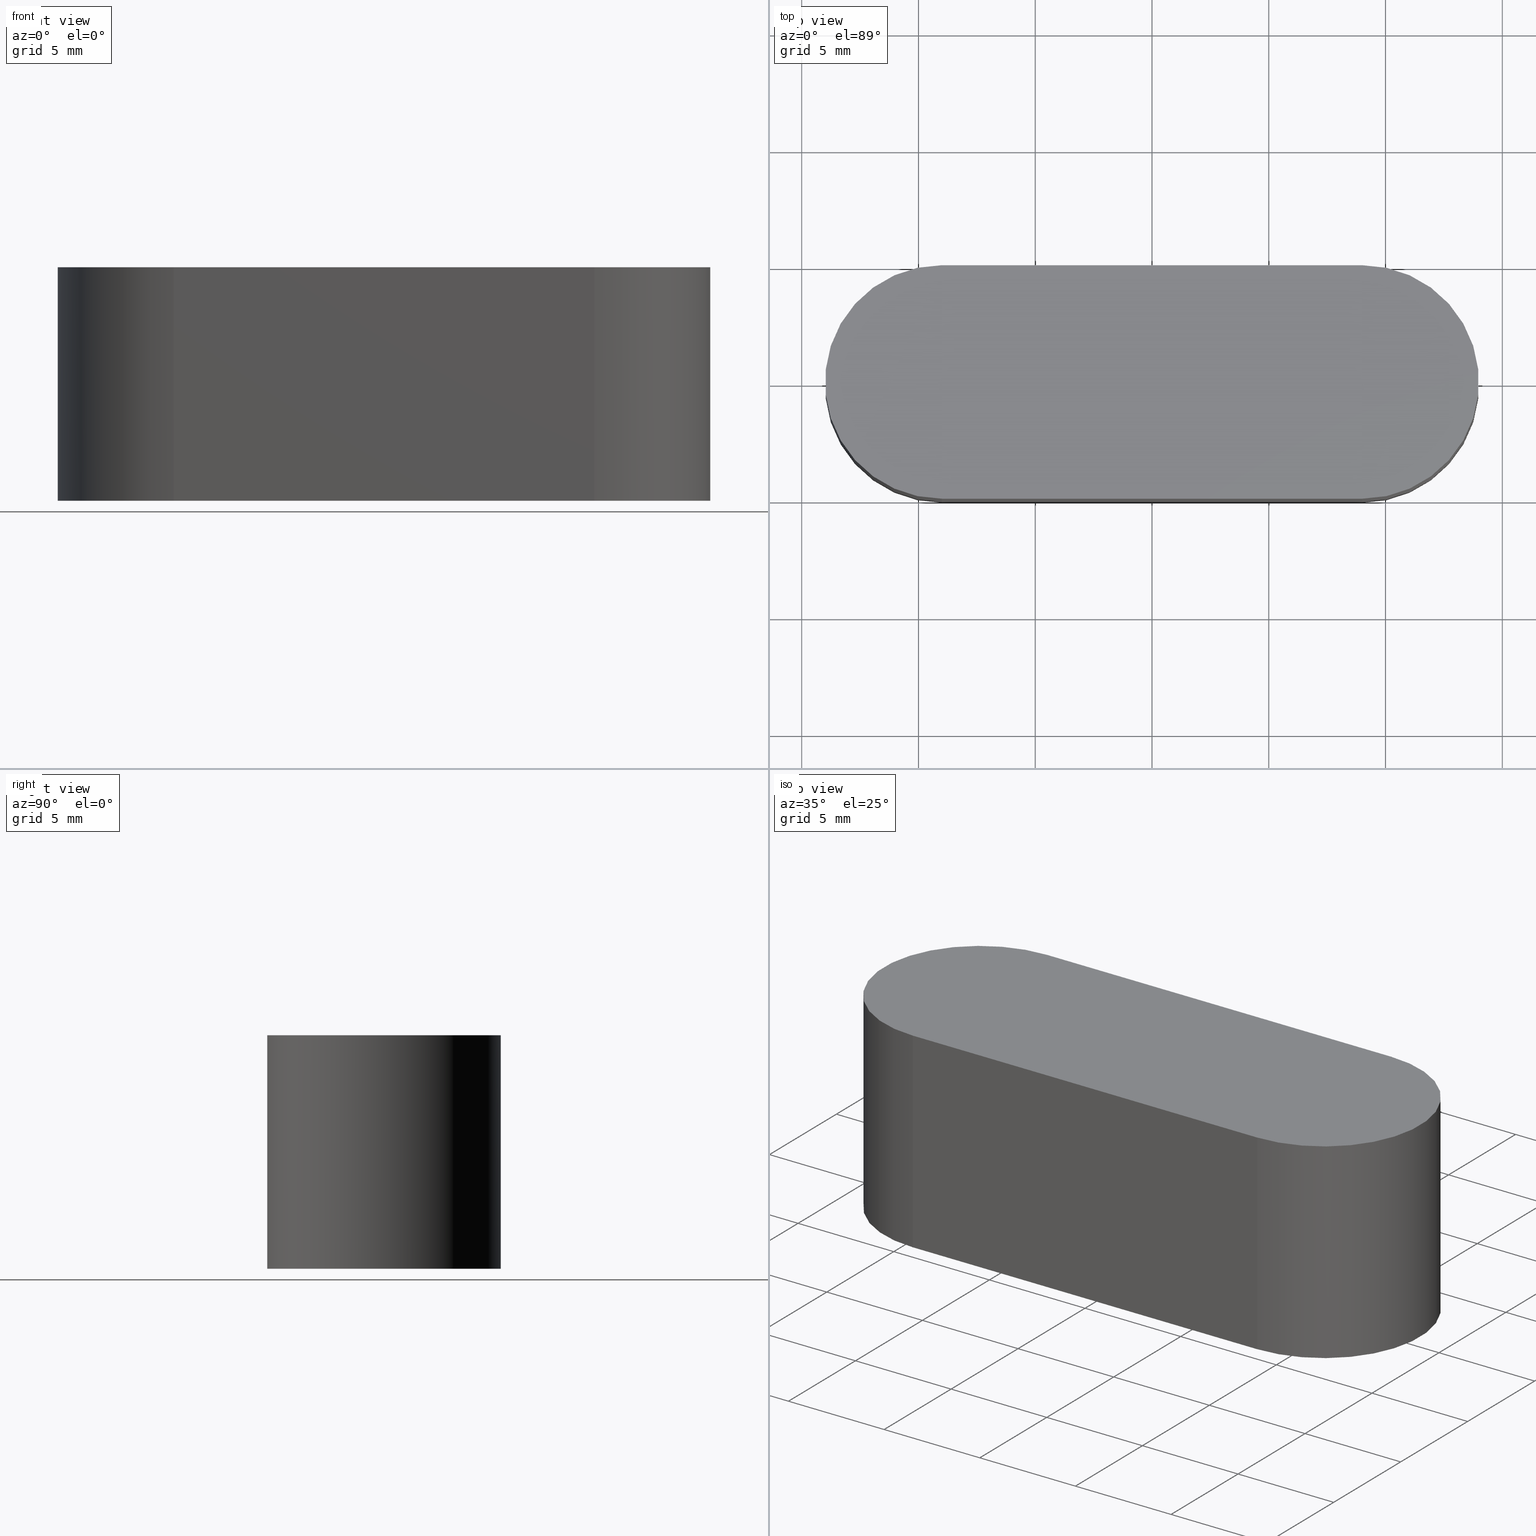
[diagram: canonical four-view strip — front | top / right | iso, engineering-drawing reading convention]
A machine part, canonical four-view strip (front | top / right | iso — engineering-drawing reading convention). The complete STEP part file that produces these views, byte-faithful:
ISO-10303-21;
HEADER;
/* Generated by software containing ST-Developer
 * from STEP Tools, Inc. (www.steptools.com) 
 */

FILE_DESCRIPTION(
/* description */ (''),
/* implementation_level */ '2;1');

FILE_NAME(
/* name */ 
'H:\\Eigene Dateien\\CAD Workspace Vault\\CAD\\E_3_Nocken\\E_3_01_Aufs
chwei\X\DFnocke\\01_Rund\\E_3_01_01_03_00_WKZ-0205.stp',
/* time_stamp */ '2024-05-16T11:03:45+02:00',
/* author */ ('dfischer'),
/* organization */ (''),
/* preprocessor_version */ 'ST-DEVELOPER v18.1',
/* originating_system */ 'Autodesk Inventor 2021',
/* authorisation */ '');

FILE_SCHEMA (('AUTOMOTIVE_DESIGN { 1 0 10303 214 3 1 1 }'));
ENDSEC;

DATA;
#10=MECHANICAL_DESIGN_GEOMETRIC_PRESENTATION_REPRESENTATION('',(#96,#97),
#194);
#11=SHAPE_REPRESENTATION_RELATIONSHIP('SRR','None',#201,#12);
#12=ADVANCED_BREP_SHAPE_REPRESENTATION('',(#13),#193);
#13=MANIFOLD_SOLID_BREP('Volumenk\X\F6rper1',#104);
#14=CYLINDRICAL_SURFACE('',#127,5.);
#15=CYLINDRICAL_SURFACE('',#130,5.);
#16=FACE_OUTER_BOUND('',#22,.T.);
#17=FACE_OUTER_BOUND('',#23,.T.);
#18=FACE_OUTER_BOUND('',#24,.T.);
#19=FACE_OUTER_BOUND('',#25,.T.);
#20=FACE_OUTER_BOUND('',#26,.T.);
#21=FACE_OUTER_BOUND('',#27,.T.);
#22=EDGE_LOOP('',(#68,#69,#70,#71));
#23=EDGE_LOOP('',(#72,#73,#74,#75));
#24=EDGE_LOOP('',(#76,#77,#78,#79));
#25=EDGE_LOOP('',(#80,#81,#82,#83));
#26=EDGE_LOOP('',(#84,#85,#86,#87));
#27=EDGE_LOOP('',(#88,#89,#90,#91));
#28=LINE('',#170,#36);
#29=LINE('',#173,#37);
#30=LINE('',#178,#38);
#31=LINE('',#179,#39);
#32=LINE('',#182,#40);
#33=LINE('',#183,#41);
#34=LINE('',#187,#42);
#35=LINE('',#189,#43);
#36=VECTOR('',#140,10.);
#37=VECTOR('',#143,10.);
#38=VECTOR('',#148,10.);
#39=VECTOR('',#149,10.);
#40=VECTOR('',#152,10.);
#41=VECTOR('',#153,10.);
#42=VECTOR('',#158,10.);
#43=VECTOR('',#161,10.);
#44=CIRCLE('',#125,5.);
#45=CIRCLE('',#126,5.);
#46=CIRCLE('',#128,5.);
#47=CIRCLE('',#131,5.);
#48=VERTEX_POINT('',#166);
#49=VERTEX_POINT('',#167);
#50=VERTEX_POINT('',#169);
#51=VERTEX_POINT('',#171);
#52=VERTEX_POINT('',#175);
#53=VERTEX_POINT('',#176);
#54=VERTEX_POINT('',#181);
#55=VERTEX_POINT('',#185);
#56=EDGE_CURVE('',#48,#49,#44,.T.);
#57=EDGE_CURVE('',#50,#48,#28,.T.);
#58=EDGE_CURVE('',#51,#50,#45,.T.);
#59=EDGE_CURVE('',#49,#51,#29,.T.);
#60=EDGE_CURVE('',#52,#53,#46,.T.);
#61=EDGE_CURVE('',#51,#53,#30,.T.);
#62=EDGE_CURVE('',#52,#50,#31,.T.);
#63=EDGE_CURVE('',#53,#54,#32,.T.);
#64=EDGE_CURVE('',#49,#54,#33,.T.);
#65=EDGE_CURVE('',#54,#55,#47,.T.);
#66=EDGE_CURVE('',#48,#55,#34,.T.);
#67=EDGE_CURVE('',#55,#52,#35,.T.);
#68=ORIENTED_EDGE('',*,*,#56,.F.);
#69=ORIENTED_EDGE('',*,*,#57,.F.);
#70=ORIENTED_EDGE('',*,*,#58,.F.);
#71=ORIENTED_EDGE('',*,*,#59,.F.);
#72=ORIENTED_EDGE('',*,*,#60,.T.);
#73=ORIENTED_EDGE('',*,*,#61,.F.);
#74=ORIENTED_EDGE('',*,*,#58,.T.);
#75=ORIENTED_EDGE('',*,*,#62,.F.);
#76=ORIENTED_EDGE('',*,*,#63,.T.);
#77=ORIENTED_EDGE('',*,*,#64,.F.);
#78=ORIENTED_EDGE('',*,*,#59,.T.);
#79=ORIENTED_EDGE('',*,*,#61,.T.);
#80=ORIENTED_EDGE('',*,*,#65,.T.);
#81=ORIENTED_EDGE('',*,*,#66,.F.);
#82=ORIENTED_EDGE('',*,*,#56,.T.);
#83=ORIENTED_EDGE('',*,*,#64,.T.);
#84=ORIENTED_EDGE('',*,*,#67,.T.);
#85=ORIENTED_EDGE('',*,*,#62,.T.);
#86=ORIENTED_EDGE('',*,*,#57,.T.);
#87=ORIENTED_EDGE('',*,*,#66,.T.);
#88=ORIENTED_EDGE('',*,*,#60,.F.);
#89=ORIENTED_EDGE('',*,*,#67,.F.);
#90=ORIENTED_EDGE('',*,*,#65,.F.);
#91=ORIENTED_EDGE('',*,*,#63,.F.);
#92=PLANE('',#124);
#93=PLANE('',#129);
#94=PLANE('',#132);
#95=PLANE('',#133);
#96=STYLED_ITEM('',(#211),#98);
#97=STYLED_ITEM('',(#210),#13);
#98=ADVANCED_FACE('',(#16),#92,.F.);
#99=ADVANCED_FACE('',(#17),#14,.T.);
#100=ADVANCED_FACE('',(#18),#93,.T.);
#101=ADVANCED_FACE('',(#19),#15,.T.);
#102=ADVANCED_FACE('',(#20),#94,.T.);
#103=ADVANCED_FACE('',(#21),#95,.T.);
#104=CLOSED_SHELL('',(#98,#99,#100,#101,#102,#103));
#105=DERIVED_UNIT_ELEMENT(#107,1.);
#106=DERIVED_UNIT_ELEMENT(#196,3.);
#107=(
MASS_UNIT()
NAMED_UNIT(*)
SI_UNIT($,.GRAM.)
);
#108=DERIVED_UNIT((#105,#106));
#109=MEASURE_REPRESENTATION_ITEM('density measure',
POSITIVE_RATIO_MEASURE(8.03),#108);
#110=PROPERTY_DEFINITION_REPRESENTATION(#115,#112);
#111=PROPERTY_DEFINITION_REPRESENTATION(#116,#113);
#112=REPRESENTATION('material name',(#114),#193);
#113=REPRESENTATION('density',(#109),#193);
#114=DESCRIPTIVE_REPRESENTATION_ITEM('1.4301','1.4301');
#115=PROPERTY_DEFINITION('material property','material name',#203);
#116=PROPERTY_DEFINITION('material property','density of part',#203);
#117=DATE_TIME_ROLE('creation_date');
#118=APPLIED_DATE_AND_TIME_ASSIGNMENT(#119,#117,(#203));
#119=DATE_AND_TIME(#120,#121);
#120=CALENDAR_DATE(2011,18,10);
#121=LOCAL_TIME(0,0,0.,#122);
#122=COORDINATED_UNIVERSAL_TIME_OFFSET(0,0,.BEHIND.);
#123=AXIS2_PLACEMENT_3D('placement',#164,#134,#135);
#124=AXIS2_PLACEMENT_3D('',#165,#136,#137);
#125=AXIS2_PLACEMENT_3D('',#168,#138,#139);
#126=AXIS2_PLACEMENT_3D('',#172,#141,#142);
#127=AXIS2_PLACEMENT_3D('',#174,#144,#145);
#128=AXIS2_PLACEMENT_3D('',#177,#146,#147);
#129=AXIS2_PLACEMENT_3D('',#180,#150,#151);
#130=AXIS2_PLACEMENT_3D('',#184,#154,#155);
#131=AXIS2_PLACEMENT_3D('',#186,#156,#157);
#132=AXIS2_PLACEMENT_3D('',#188,#159,#160);
#133=AXIS2_PLACEMENT_3D('',#190,#162,#163);
#134=DIRECTION('axis',(0.,0.,1.));
#135=DIRECTION('refdir',(1.,0.,0.));
#136=DIRECTION('center_axis',(0.,0.,1.));
#137=DIRECTION('ref_axis',(1.,0.,0.));
#138=DIRECTION('center_axis',(0.,0.,1.));
#139=DIRECTION('ref_axis',(0.,-1.,0.));
#140=DIRECTION('',(1.,0.,0.));
#141=DIRECTION('center_axis',(0.,0.,1.));
#142=DIRECTION('ref_axis',(-4.44089209850063E-16,1.,0.));
#143=DIRECTION('',(-1.,-1.85037170770859E-16,0.));
#144=DIRECTION('center_axis',(0.,0.,1.));
#145=DIRECTION('ref_axis',(-4.44089209850063E-16,1.,0.));
#146=DIRECTION('center_axis',(0.,0.,-1.));
#147=DIRECTION('ref_axis',(-4.44089209850063E-16,1.,0.));
#148=DIRECTION('',(0.,0.,1.));
#149=DIRECTION('',(0.,0.,-1.));
#150=DIRECTION('center_axis',(-1.85037170770859E-16,1.,0.));
#151=DIRECTION('ref_axis',(0.,0.,1.));
#152=DIRECTION('',(1.,1.85037170770859E-16,0.));
#153=DIRECTION('',(0.,0.,1.));
#154=DIRECTION('center_axis',(0.,0.,1.));
#155=DIRECTION('ref_axis',(0.,-1.,0.));
#156=DIRECTION('center_axis',(0.,0.,-1.));
#157=DIRECTION('ref_axis',(0.,-1.,0.));
#158=DIRECTION('',(0.,0.,1.));
#159=DIRECTION('center_axis',(0.,-1.,0.));
#160=DIRECTION('ref_axis',(0.,0.,-1.));
#161=DIRECTION('',(-1.,0.,0.));
#162=DIRECTION('center_axis',(0.,0.,1.));
#163=DIRECTION('ref_axis',(1.,0.,0.));
#164=CARTESIAN_POINT('',(0.,0.,0.));
#165=CARTESIAN_POINT('Origin',(-1.11022302462516E-15,1.19006027054708E-15,
-5.));
#166=CARTESIAN_POINT('',(9.,-5.,-5.));
#167=CARTESIAN_POINT('',(9.,5.,-5.));
#168=CARTESIAN_POINT('Origin',(9.,2.78214431377604E-15,-5.));
#169=CARTESIAN_POINT('',(-9.,-5.,-5.));
#170=CARTESIAN_POINT('',(-9.,-5.,-5.));
#171=CARTESIAN_POINT('',(-9.00000000000001,5.,-5.));
#172=CARTESIAN_POINT('Origin',(-9.,5.55111512312578E-16,-5.));
#173=CARTESIAN_POINT('',(9.,5.,-5.));
#174=CARTESIAN_POINT('Origin',(-9.,5.55111512312578E-16,0.));
#175=CARTESIAN_POINT('',(-9.,-5.,5.));
#176=CARTESIAN_POINT('',(-9.00000000000001,5.,5.));
#177=CARTESIAN_POINT('Origin',(-9.,5.55111512312578E-16,5.));
#178=CARTESIAN_POINT('',(-9.00000000000001,5.,0.));
#179=CARTESIAN_POINT('',(-9.,-5.,0.));
#180=CARTESIAN_POINT('Origin',(-9.00000000000001,5.,0.));
#181=CARTESIAN_POINT('',(9.,5.,5.));
#182=CARTESIAN_POINT('',(9.,5.,5.));
#183=CARTESIAN_POINT('',(9.,5.,0.));
#184=CARTESIAN_POINT('Origin',(9.,2.78214431377604E-15,0.));
#185=CARTESIAN_POINT('',(9.,-5.,5.));
#186=CARTESIAN_POINT('Origin',(9.,2.78214431377604E-15,5.));
#187=CARTESIAN_POINT('',(9.,-5.,0.));
#188=CARTESIAN_POINT('Origin',(9.,-5.,0.));
#189=CARTESIAN_POINT('',(-9.,-5.,5.));
#190=CARTESIAN_POINT('Origin',(-1.11022302462516E-15,1.21604781766424E-15,
5.));
#191=UNCERTAINTY_MEASURE_WITH_UNIT(LENGTH_MEASURE(0.01),#195,
'DISTANCE_ACCURACY_VALUE',
'Maximum model space distance between geometric entities at asserted c
onnectivities');
#192=UNCERTAINTY_MEASURE_WITH_UNIT(LENGTH_MEASURE(0.01),#195,
'DISTANCE_ACCURACY_VALUE',
'Maximum model space distance between geometric entities at asserted c
onnectivities');
#193=(
GEOMETRIC_REPRESENTATION_CONTEXT(3)
GLOBAL_UNCERTAINTY_ASSIGNED_CONTEXT((#191))
GLOBAL_UNIT_ASSIGNED_CONTEXT((#195,#197,#198))
REPRESENTATION_CONTEXT('','3D')
);
#194=(
GEOMETRIC_REPRESENTATION_CONTEXT(3)
GLOBAL_UNCERTAINTY_ASSIGNED_CONTEXT((#192))
GLOBAL_UNIT_ASSIGNED_CONTEXT((#195,#197,#198))
REPRESENTATION_CONTEXT('','3D')
);
#195=(
LENGTH_UNIT()
NAMED_UNIT(*)
SI_UNIT(.MILLI.,.METRE.)
);
#196=(
LENGTH_UNIT()
NAMED_UNIT(*)
SI_UNIT(.CENTI.,.METRE.)
);
#197=(
NAMED_UNIT(*)
PLANE_ANGLE_UNIT()
SI_UNIT($,.RADIAN.)
);
#198=(
NAMED_UNIT(*)
SI_UNIT($,.STERADIAN.)
SOLID_ANGLE_UNIT()
);
#199=SHAPE_DEFINITION_REPRESENTATION(#200,#201);
#200=PRODUCT_DEFINITION_SHAPE('',$,#203);
#201=SHAPE_REPRESENTATION('',(#123),#193);
#202=PRODUCT_DEFINITION_CONTEXT('part definition',#207,'design');
#203=PRODUCT_DEFINITION('WKZ-0205','E_3_01_01_03_00_WKZ-0205',#204,#202);
#204=PRODUCT_DEFINITION_FORMATION('',$,#209);
#205=PRODUCT_RELATED_PRODUCT_CATEGORY('E_3_01_01_03_00_WKZ-0205',
'E_3_01_01_03_00_WKZ-0205',(#209));
#206=APPLICATION_PROTOCOL_DEFINITION('international standard',
'automotive_design',2009,#207);
#207=APPLICATION_CONTEXT(
'Core Data for Automotive Mechanical Design Process');
#208=PRODUCT_CONTEXT('part definition',#207,'mechanical');
#209=PRODUCT('WKZ-0205','E_3_01_01_03_00_WKZ-0205',$,(#208));
#210=PRESENTATION_STYLE_ASSIGNMENT((#212));
#211=PRESENTATION_STYLE_ASSIGNMENT((#213));
#212=SURFACE_STYLE_USAGE(.BOTH.,#216);
#213=SURFACE_STYLE_USAGE(.BOTH.,#217);
#214=SURFACE_STYLE_RENDERING_WITH_PROPERTIES($,#224,(#215));
#215=SURFACE_STYLE_TRANSPARENT(0.);
#216=SURFACE_SIDE_STYLE('',(#218,#214));
#217=SURFACE_SIDE_STYLE('',(#219));
#218=SURFACE_STYLE_FILL_AREA(#220);
#219=SURFACE_STYLE_FILL_AREA(#221);
#220=FILL_AREA_STYLE('',(#222));
#221=FILL_AREA_STYLE('',(#223));
#222=FILL_AREA_STYLE_COLOUR('',#224);
#223=FILL_AREA_STYLE_COLOUR('',#225);
#224=COLOUR_RGB('',0.92156862745098,0.92156862745098,0.92156862745098);
#225=COLOUR_RGB('',0.16078431372549,0.16078431372549,0.16078431372549);
ENDSEC;
END-ISO-10303-21;
